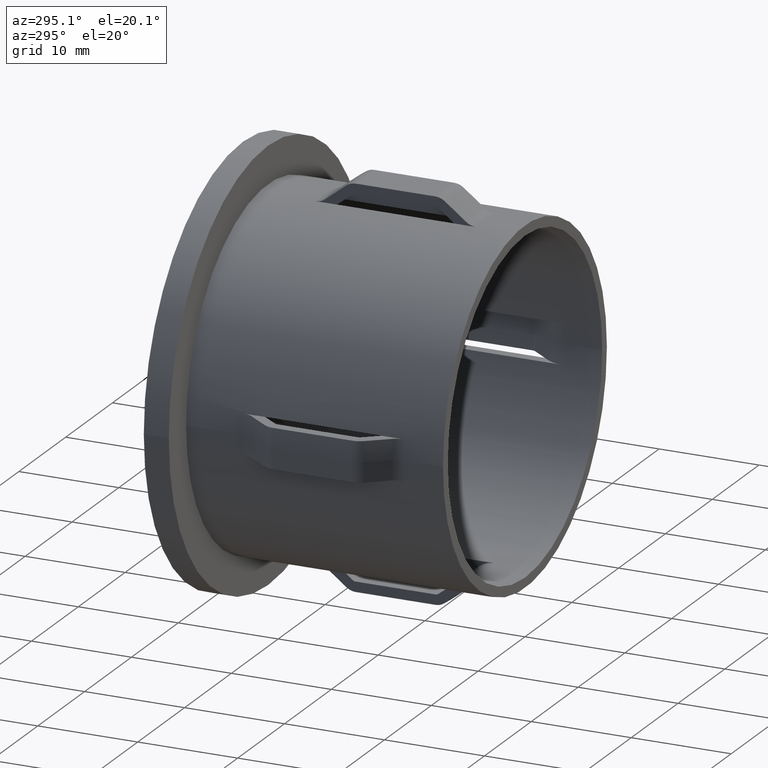
[diagram: clean part render]
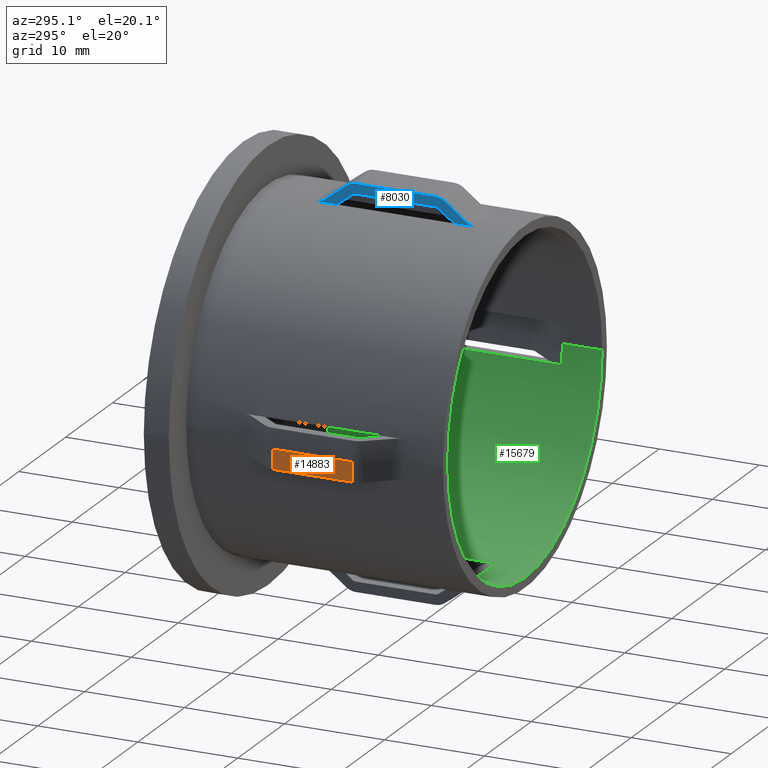
[diagram: same view with three faces highlighted in distinct colors, each labeled with its STEP entity id]
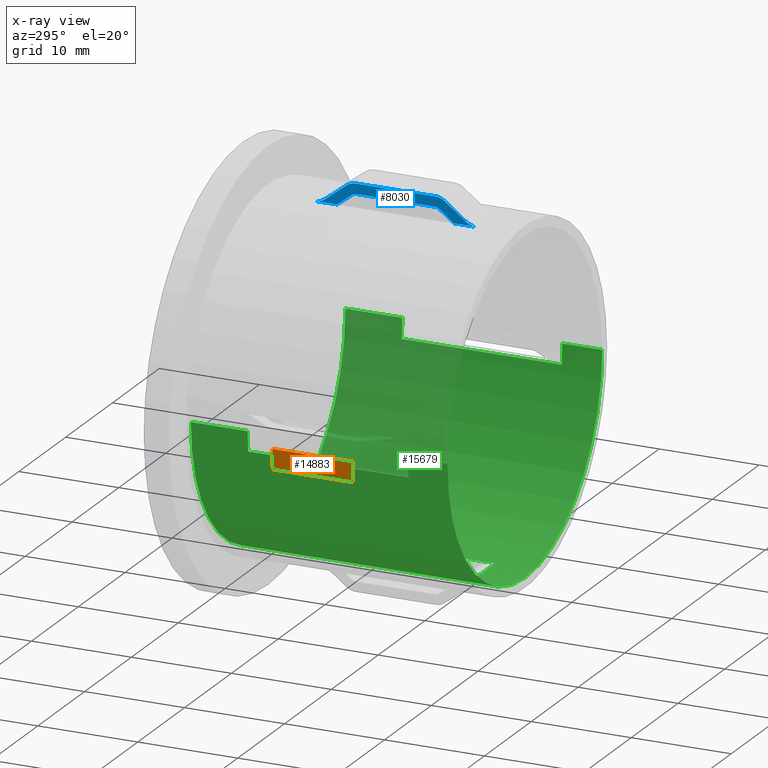
[diagram: x-ray of the same camera — body ghosted, the three highlighted faces saturated]
A machine part, auxiliary view with three faces highlighted in distinct colors.
The next image is the same camera in x-ray (body ghosted, the three faces saturated) — at least one of them is partly hidden behind the body in this view.
Their STEP definitions:

[orange] entity #14883 — the highlighted cylindrical surface (partial cylindrical patch) has radius 19.8 mm, axis along (-0, 1, -0).
#365 = DIRECTION ( 'NONE',  ( -1.714505518806297100E-016, 1.000000000000000000, -0.0000000000000000000 ) ) ;
#1263 = EDGE_CURVE ( 'NONE', #7778, #9473, #12883, .T. ) ;
#1569 = ORIENTED_EDGE ( 'NONE', *, *, #1263, .F. ) ;
#1912 = AXIS2_PLACEMENT_3D ( 'NONE', #11277, #3622, #12588 ) ;
#2244 = CARTESIAN_POINT ( 'NONE',  ( -19.69873092358997000, 20.00000000000000000, -2.000000000000000000 ) ) ;
#2315 = EDGE_CURVE ( 'NONE', #7778, #10833, #15633, .T. ) ;
#3292 = CARTESIAN_POINT ( 'NONE',  ( -19.69873092358997000, 7.999999999999992900, -2.000000000000000000 ) ) ;
#3622 = DIRECTION ( 'NONE',  ( -1.714505518806297100E-016, 1.000000000000000000, -0.0000000000000000000 ) ) ;
#3959 = ORIENTED_EDGE ( 'NONE', *, *, #7520, .T. ) ;
#4244 = CARTESIAN_POINT ( 'NONE',  ( -19.80000000000000100, 15.99999999999999300, 0.0000000000000000000 ) ) ;
#4389 = CARTESIAN_POINT ( 'NONE',  ( 3.218371788159250600E-015, 7.999999999999992900, 0.0000000000000000000 ) ) ;
#4441 = DIRECTION ( 'NONE',  ( -1.714505518806297100E-016, 1.000000000000000000, -0.0000000000000000000 ) ) ;
#5538 = VECTOR ( 'NONE', #6193, 1000.000000000000000 ) ;
#5850 = EDGE_CURVE ( 'NONE', #6281, #9473, #16589, .T. ) ;
#6193 = DIRECTION ( 'NONE',  ( -1.714505518806297100E-016, 1.000000000000000000, -0.0000000000000000000 ) ) ;
#6281 = VERTEX_POINT ( 'NONE', #13864 ) ;
#6413 = VECTOR ( 'NONE', #7444, 1000.000000000000000 ) ;
#7444 = DIRECTION ( 'NONE',  ( -0.0000000000000000000, -1.000000000000000000, -0.0000000000000000000 ) ) ;
#7488 = CARTESIAN_POINT ( 'NONE',  ( -19.80000000000000100, 28.19999999999999600, 0.0000000000000000000 ) ) ;
#7520 = EDGE_CURVE ( 'NONE', #10833, #6281, #13760, .T. ) ;
#7778 = VERTEX_POINT ( 'NONE', #11522 ) ;
#8164 = ORIENTED_EDGE ( 'NONE', *, *, #2315, .T. ) ;
#9164 = ORIENTED_EDGE ( 'NONE', *, *, #5850, .T. ) ;
#9473 = VERTEX_POINT ( 'NONE', #4244 ) ;
#9559 = AXIS2_PLACEMENT_3D ( 'NONE', #4389, #4441, #10711 ) ;
#10164 = AXIS2_PLACEMENT_3D ( 'NONE', #13298, #365, #15634 ) ;
#10426 = FACE_OUTER_BOUND ( 'NONE', #16317, .T. ) ;
#10711 = DIRECTION ( 'NONE',  ( -1.000000000000000000, -1.752245935330108400E-016, 0.0000000000000000000 ) ) ;
#10833 = VERTEX_POINT ( 'NONE', #3292 ) ;
#11277 = CARTESIAN_POINT ( 'NONE',  ( 1.846767373114211700E-015, 15.99999999999999600, 0.0000000000000000000 ) ) ;
#11522 = CARTESIAN_POINT ( 'NONE',  ( -19.69873092358997000, 15.99999999999999300, -2.000000000000000000 ) ) ;
#12588 = DIRECTION ( 'NONE',  ( -1.000000000000000000, -1.752245935330107700E-016, 0.0000000000000000000 ) ) ;
#12883 = CIRCLE ( 'NONE', #1912, 19.80000000000000400 ) ;
#13298 = CARTESIAN_POINT ( 'NONE',  ( -2.449293598294708900E-016, 28.19999999999999900, 0.0000000000000000000 ) ) ;
#13760 = CIRCLE ( 'NONE', #9559, 19.79999999999999700 ) ;
#13864 = CARTESIAN_POINT ( 'NONE',  ( -19.79999999999999400, 7.999999999999989300, 0.0000000000000000000 ) ) ;
#14883 = ADVANCED_FACE ( 'NONE', ( #10426 ), #15232, .T. ) ;
#15232 = CYLINDRICAL_SURFACE ( 'NONE', #10164, 19.80000000000000100 ) ;
#15633 = LINE ( 'NONE', #2244, #6413 ) ;
#15634 = DIRECTION ( 'NONE',  ( -1.000000000000000000, -1.752245935330108200E-016, 0.0000000000000000000 ) ) ;
#16317 = EDGE_LOOP ( 'NONE', ( #3959, #9164, #1569, #8164 ) ) ;
#16589 = LINE ( 'NONE', #7488, #5538 ) ;

[blue] entity #8030 — the highlighted planar face has unit normal (-1, 0, 0).
#97 = EDGE_CURVE ( 'NONE', #7538, #16128, #16424, .T. ) ;
#170 = CARTESIAN_POINT ( 'NONE',  ( -1.999999999999996700, 17.44161250498658300, 17.70510967552677100 ) ) ;
#207 = CARTESIAN_POINT ( 'NONE',  ( -1.999999999999996200, 7.672386854180893500, 19.67162820651757800 ) ) ;
#208 = CARTESIAN_POINT ( 'NONE',  ( -1.999999999999996700, 5.060495202478389100, 17.81191609988229600 ) ) ;
#297 = CARTESIAN_POINT ( 'NONE',  ( -1.999999999999996700, 3.999999999999993300, 17.38533865071371000 ) ) ;
#322 = CARTESIAN_POINT ( 'NONE',  ( -1.999999999999996700, 17.23606738661802900, 17.86496968364076200 ) ) ;
#488 = B_SPLINE_CURVE_WITH_KNOTS ( 'NONE', 3,
 ( #12650, #6352, #2325, #5055, #6121, #4995 ),
 .UNSPECIFIED., .F., .F.,
 ( 4, 2, 4 ),
 ( 0.008867984013301794300, 0.009358702014046670100, 0.009849420014791545800 ),
 .UNSPECIFIED. ) ;
#506 = EDGE_CURVE ( 'NONE', #12012, #4211, #2833, .T. ) ;
#530 = VERTEX_POINT ( 'NONE', #4781 ) ;
#532 = CARTESIAN_POINT ( 'NONE',  ( -1.999999999999996700, 19.83627117955012800, 17.38533865071371300 ) ) ;
#818 = CARTESIAN_POINT ( 'NONE',  ( -1.999999999999996700, 15.99999999999999600, 18.69331431287668000 ) ) ;
#845 = ORIENTED_EDGE ( 'NONE', *, *, #3728, .T. ) ;
#868 = CARTESIAN_POINT ( 'NONE',  ( -1.999999999999996200, 17.16348861717476700, 19.19262139241841300 ) ) ;
#1155 = EDGE_CURVE ( 'NONE', #6834, #6595, #15337, .T. ) ;
#1184 = CARTESIAN_POINT ( 'NONE',  ( -1.999999999999996200, 19.99999999999999300, 17.38533865071370600 ) ) ;
#1405 = ORIENTED_EDGE ( 'NONE', *, *, #1155, .T. ) ;
#1438 = CARTESIAN_POINT ( 'NONE',  ( -1.999999999999996700, 4.917305896999594400, 17.70054402987423400 ) ) ;
#1532 = CARTESIAN_POINT ( 'NONE',  ( -1.999999999999995800, 7.360362520471160700, 19.56480000623314200 ) ) ;
#1561 = EDGE_CURVE ( 'NONE', #16128, #12012, #7653, .T. ) ;
#1804 = CARTESIAN_POINT ( 'NONE',  ( -1.999999999999996200, 15.99999999999999300, 19.69873092358997400 ) ) ;
#1824 = CARTESIAN_POINT ( 'NONE',  ( -1.999999999999996200, 19.99999999999999300, 17.38533865071370600 ) ) ;
#1898 = CARTESIAN_POINT ( 'NONE',  ( -1.999999999999996200, 7.082694103002710400, 19.38391828307800700 ) ) ;
#2021 = CARTESIAN_POINT ( 'NONE',  ( -1.999999999999996200, 16.91730589699728400, 19.38391828307800700 ) ) ;
#2325 = CARTESIAN_POINT ( 'NONE',  ( -1.999999999999995800, 16.32915803494994800, 19.67134519996887200 ) ) ;
#2525 = ORIENTED_EDGE ( 'NONE', *, *, #15897, .F. ) ;
#2672 = CARTESIAN_POINT ( 'NONE',  ( -1.999999999999996200, 7.944671051340662900, 18.69331431287668000 ) ) ;
#2761 = ORIENTED_EDGE ( 'NONE', *, *, #1561, .T. ) ;
#2768 = CARTESIAN_POINT ( 'NONE',  ( -1.999999999999996700, 7.694231367667780900, 18.58832299002230900 ) ) ;
#2808 = CARTESIAN_POINT ( 'NONE',  ( -1.999999999999996200, 7.999999999999992900, 19.69873092358997400 ) ) ;
#2833 = LINE ( 'NONE', #12138, #10448 ) ;
#2880 = LINE ( 'NONE', #13930, #16092 ) ;
#2971 = ORIENTED_EDGE ( 'NONE', *, *, #97, .T. ) ;
#3010 = CARTESIAN_POINT ( 'NONE',  ( -1.999999999999996700, 16.05463920765871000, 18.69331431287668700 ) ) ;
#3054 = CARTESIAN_POINT ( 'NONE',  ( -1.999999999999996200, 16.91730589699728400, 19.38391828307800700 ) ) ;
#3060 = DIRECTION ( 'NONE',  ( -0.0000000000000000000, -1.000000000000000000, -0.0000000000000000000 ) ) ;
#3728 = EDGE_CURVE ( 'NONE', #6282, #14374, #4669, .T. ) ;
#3882 = B_SPLINE_CURVE_WITH_KNOTS ( 'NONE', 3,
 ( #9191, #6715, #1532, #207, #9135, #2808 ),
 .UNSPECIFIED., .F., .F.,
 ( 4, 2, 4 ),
 ( 0.008967400865627800700, 0.009457634693453113900, 0.009947868521278425300 ),
 .UNSPECIFIED. ) ;
#3906 = CARTESIAN_POINT ( 'NONE',  ( -1.999999999999996700, 4.965034956402244700, 17.73766896485842500 ) ) ;
#3996 = CARTESIAN_POINT ( 'NONE',  ( -1.999999999999996700, 4.917305896999594400, 17.70054402987423400 ) ) ;
#4211 = VERTEX_POINT ( 'NONE', #12829 ) ;
#4281 = CARTESIAN_POINT ( 'NONE',  ( -1.999999999999997100, 16.21332361912641000, 18.64855506590738400 ) ) ;
#4497 = CARTESIAN_POINT ( 'NONE',  ( -1.999999999999996700, 15.99999999999999600, 18.69331431287668000 ) ) ;
#4538 = CARTESIAN_POINT ( 'NONE',  ( -1.999999999999996700, 6.240436341341644600, 17.45777055170323400 ) ) ;
#4620 = AXIS2_PLACEMENT_3D ( 'NONE', #12227, #16112, #13628 ) ;
#4669 = B_SPLINE_CURVE_WITH_KNOTS ( 'NONE', 3,
 ( #2768, #13033, #5317, #13587, #5478, #4538, #11952 ),
 .UNSPECIFIED., .F., .F.,
 ( 4, 3, 4 ),
 ( 0.003338922586900217900, 0.004944656690054788000, 0.005298527996204976900 ),
 .UNSPECIFIED. ) ;
#4671 = EDGE_LOOP ( 'NONE', ( #2761, #9959, #8347, #14555, #15572, #11349, #845, #10017, #1405, #14863, #13150, #2525, #9641, #2971 ) ) ;
#4781 = CARTESIAN_POINT ( 'NONE',  ( -1.999999999999996200, 7.999999999999992900, 19.69873092358997400 ) ) ;
#4948 = DIRECTION ( 'NONE',  ( -0.0000000000000000000, -1.000000000000000000, -0.0000000000000000000 ) ) ;
#4995 = CARTESIAN_POINT ( 'NONE',  ( -1.999999999999996200, 16.91730589699728400, 19.38391828307800700 ) ) ;
#5055 = CARTESIAN_POINT ( 'NONE',  ( -1.999999999999996200, 16.64209367270386500, 19.56370999303141600 ) ) ;
#5074 = B_SPLINE_CURVE_WITH_KNOTS ( 'NONE', 3,
 ( #13313, #13426, #4281, #12196, #3010, #4497 ),
 .UNSPECIFIED., .F., .F.,
 ( 4, 2, 4 ),
 ( 0.001121410949491989400, 0.001285245636186296700, 0.001449080322880604100 ),
 .UNSPECIFIED. ) ;
#5317 = CARTESIAN_POINT ( 'NONE',  ( -1.999999999999996700, 6.849119050359676400, 17.93125917948813400 ) ) ;
#5474 = VECTOR ( 'NONE', #6842, 1000.000000000000000 ) ;
#5478 = CARTESIAN_POINT ( 'NONE',  ( -1.999999999999996700, 6.333538614768044400, 17.53019877033859300 ) ) ;
#5503 = VERTEX_POINT ( 'NONE', #16598 ) ;
#5670 = CARTESIAN_POINT ( 'NONE',  ( -1.999999999999996700, 4.917305896999594400, 17.70054402987423400 ) ) ;
#5808 = PLANE ( 'NONE',  #4620 ) ;
#5881 = LINE ( 'NONE', #14504, #5474 ) ;
#6121 = CARTESIAN_POINT ( 'NONE',  ( -1.999999999999996200, 16.78708182934077100, 19.48510390493481700 ) ) ;
#6282 = VERTEX_POINT ( 'NONE', #8706 ) ;
#6352 = CARTESIAN_POINT ( 'NONE',  ( -1.999999999999995800, 16.16359204017242500, 19.69873092358998400 ) ) ;
#6465 = CARTESIAN_POINT ( 'NONE',  ( -1.999999999999996700, 5.012764729325934500, 17.77479298253360100 ) ) ;
#6481 = EDGE_CURVE ( 'NONE', #15542, #530, #3882, .T. ) ;
#6507 = CARTESIAN_POINT ( 'NONE',  ( -1.999999999999996200, 7.082694103002710400, 19.38391828307800700 ) ) ;
#6523 = CARTESIAN_POINT ( 'NONE',  ( -1.999999999999996700, 7.737947300021954100, 18.62230641858774400 ) ) ;
#6581 = CARTESIAN_POINT ( 'NONE',  ( -1.999999999999996700, 16.30576863233242300, 18.58832299002213500 ) ) ;
#6595 = VERTEX_POINT ( 'NONE', #5670 ) ;
#6707 = CARTESIAN_POINT ( 'NONE',  ( -1.999999999999996700, 4.640460776413571700, 17.51991583062470800 ) ) ;
#6715 = CARTESIAN_POINT ( 'NONE',  ( -1.999999999999995800, 7.212180221629354000, 19.48453050991786400 ) ) ;
#6834 = VERTEX_POINT ( 'NONE', #10251 ) ;
#6842 = DIRECTION ( 'NONE',  ( 1.714505518806297100E-016, -1.000000000000000000, 0.0000000000000000000 ) ) ;
#7015 = EDGE_CURVE ( 'NONE', #5503, #8077, #5074, .T. ) ;
#7252 = VERTEX_POINT ( 'NONE', #1804 ) ;
#7285 = CARTESIAN_POINT ( 'NONE',  ( -1.999999999999996200, 16.99936842538838600, 19.32015473985728300 ) ) ;
#7430 = CARTESIAN_POINT ( 'NONE',  ( -1.999999999999993100, 7.999999999999996400, 18.69331431287667700 ) ) ;
#7538 = VERTEX_POINT ( 'NONE', #3054 ) ;
#7653 = B_SPLINE_CURVE_WITH_KNOTS ( 'NONE', 3,
 ( #9478, #15848, #14671, #8185, #532, #1824 ),
 .UNSPECIFIED., .F., .F.,
 ( 4, 2, 4 ),
 ( 0.009203136996851376400, 0.009694261902653640200, 0.01018538680845590400 ),
 .UNSPECIFIED. ) ;
#8030 = ADVANCED_FACE ( 'NONE', ( #14540 ), #5808, .T. ) ;
#8038 = CARTESIAN_POINT ( 'NONE',  ( -1.999999999999996700, 17.85266306708251700, 17.38533865071371000 ) ) ;
#8077 = VERTEX_POINT ( 'NONE', #818 ) ;
#8185 = CARTESIAN_POINT ( 'NONE',  ( -1.999999999999996700, 19.67034361049968500, 17.41307147728944200 ) ) ;
#8341 = CARTESIAN_POINT ( 'NONE',  ( -1.999999999999996200, 17.08142934826650400, 19.25638913031339400 ) ) ;
#8347 = ORIENTED_EDGE ( 'NONE', *, *, #8773, .T. ) ;
#8603 = VECTOR ( 'NONE', #11307, 1000.000000000000000 ) ;
#8692 = CARTESIAN_POINT ( 'NONE',  ( -1.999999999999996200, 20.00000000000000000, 19.69873092358997400 ) ) ;
#8706 = CARTESIAN_POINT ( 'NONE',  ( -1.999999999999996700, 7.694231367667780900, 18.58832299002230900 ) ) ;
#8773 = EDGE_CURVE ( 'NONE', #4211, #5503, #12496, .T. ) ;
#9006 = CARTESIAN_POINT ( 'NONE',  ( -1.999999999999993100, 7.999999999999996400, 18.69331431287667700 ) ) ;
#9081 = CARTESIAN_POINT ( 'NONE',  ( -1.999999999999996700, 4.787664262813032100, 17.59970531023638800 ) ) ;
#9105 = CARTESIAN_POINT ( 'NONE',  ( -1.999999999999996700, 16.92599595467671500, 18.10612365518475600 ) ) ;
#9135 = CARTESIAN_POINT ( 'NONE',  ( -1.999999999999996200, 7.834924305480600800, 19.69873092358998100 ) ) ;
#9141 = CARTESIAN_POINT ( 'NONE',  ( -1.999999999999996200, 6.408509889070942700, 18.86006927298055700 ) ) ;
#9154 = EDGE_CURVE ( 'NONE', #8077, #12783, #5881, .T. ) ;
#9191 = CARTESIAN_POINT ( 'NONE',  ( -1.999999999999996200, 7.082694103002710400, 19.38391828307800700 ) ) ;
#9478 = CARTESIAN_POINT ( 'NONE',  ( -1.999999999999996700, 19.08269410300271200, 17.70054402987661700 ) ) ;
#9641 = ORIENTED_EDGE ( 'NONE', *, *, #14814, .T. ) ;
#9814 = EDGE_CURVE ( 'NONE', #14374, #6834, #2880, .T. ) ;
#9959 = ORIENTED_EDGE ( 'NONE', *, *, #506, .T. ) ;
#10017 = ORIENTED_EDGE ( 'NONE', *, *, #9814, .T. ) ;
#10251 = CARTESIAN_POINT ( 'NONE',  ( -1.999999999999996700, 3.999999999999993300, 17.38533865071371000 ) ) ;
#10434 = B_SPLINE_CURVE_WITH_KNOTS ( 'NONE', 3,
 ( #1438, #3906, #6465, #208, #12971, #9141, #6507 ),
 .UNSPECIFIED., .F., .F.,
 ( 4, 3, 4 ),
 ( 0.005285805697475323300, 0.005467208288220887600, 0.008028551137046369100 ),
 .UNSPECIFIED. ) ;
#10448 = VECTOR ( 'NONE', #3060, 1000.000000000000000 ) ;
#11073 = CARTESIAN_POINT ( 'NONE',  ( -1.999999999999996200, 17.80333279971733200, 18.69540253257680700 ) ) ;
#11307 = DIRECTION ( 'NONE',  ( -0.0000000000000000000, -1.000000000000000000, -0.0000000000000000000 ) ) ;
#11349 = ORIENTED_EDGE ( 'NONE', *, *, #12039, .T. ) ;
#11416 = CARTESIAN_POINT ( 'NONE',  ( -1.999999999999996700, 7.694231367667780900, 18.58832299002230900 ) ) ;
#11639 = CARTESIAN_POINT ( 'NONE',  ( -1.999999999999996700, 7.785984405077051000, 18.64831814402369800 ) ) ;
#11665 = CARTESIAN_POINT ( 'NONE',  ( -1.999999999999996200, 4.165290279245916800, 17.38533865071371300 ) ) ;
#11801 = CARTESIAN_POINT ( 'NONE',  ( -1.999999999999996700, 16.61589527519828400, 18.34724002446394700 ) ) ;
#11952 = CARTESIAN_POINT ( 'NONE',  ( -1.999999999999996700, 6.147336932917479400, 17.38533865071371000 ) ) ;
#12012 = VERTEX_POINT ( 'NONE', #1184 ) ;
#12039 = EDGE_CURVE ( 'NONE', #12783, #6282, #14335, .T. ) ;
#12138 = CARTESIAN_POINT ( 'NONE',  ( -1.999999999999996700, 20.00000000000000000, 17.38533865071371000 ) ) ;
#12196 = CARTESIAN_POINT ( 'NONE',  ( -1.999999999999996700, 16.10995719057469000, 18.68406974042051500 ) ) ;
#12227 = CARTESIAN_POINT ( 'NONE',  ( -2.000000000000000000, 20.00000000000000000, 3.920560142907556500E-016 ) ) ;
#12387 = CARTESIAN_POINT ( 'NONE',  ( -1.999999999999996700, 19.08269410300271200, 17.70054402987661700 ) ) ;
#12496 = B_SPLINE_CURVE_WITH_KNOTS ( 'NONE', 3,
 ( #8038, #14260, #170, #322, #9105, #11801, #6581 ),
 .UNSPECIFIED., .F., .F.,
 ( 4, 3, 4 ),
 ( 0.004163481079764765200, 0.004944657109267978200, 0.006123086308674613500 ),
 .UNSPECIFIED. ) ;
#12650 = CARTESIAN_POINT ( 'NONE',  ( -1.999999999999996200, 15.99999999999999300, 19.69873092358997400 ) ) ;
#12783 = VERTEX_POINT ( 'NONE', #7430 ) ;
#12829 = CARTESIAN_POINT ( 'NONE',  ( -1.999999999999996700, 17.85266306708251700, 17.38533865071371000 ) ) ;
#12971 = CARTESIAN_POINT ( 'NONE',  ( -1.999999999999996700, 5.734433190432793200, 18.33608184474439500 ) ) ;
#13033 = CARTESIAN_POINT ( 'NONE',  ( -1.999999999999996700, 7.271651142806102400, 18.25982204971462200 ) ) ;
#13117 = CARTESIAN_POINT ( 'NONE',  ( -1.999999999999997100, 4.329700382547955900, 17.41301937505974700 ) ) ;
#13150 = ORIENTED_EDGE ( 'NONE', *, *, #6481, .T. ) ;
#13313 = CARTESIAN_POINT ( 'NONE',  ( -1.999999999999996700, 16.30576863233242300, 18.58832299002213500 ) ) ;
#13368 = EDGE_CURVE ( 'NONE', #6595, #15542, #10434, .T. ) ;
#13426 = CARTESIAN_POINT ( 'NONE',  ( -1.999999999999996200, 16.26260801074618500, 18.62187473698330100 ) ) ;
#13587 = CARTESIAN_POINT ( 'NONE',  ( -1.999999999999996700, 6.426643648481549700, 17.60262344035573900 ) ) ;
#13628 = DIRECTION ( 'NONE',  ( 1.960280071453778300E-016, 0.0000000000000000000, 1.000000000000000000 ) ) ;
#13930 = CARTESIAN_POINT ( 'NONE',  ( -1.999999999999996700, 20.00000000000000000, 17.38533865071371000 ) ) ;
#14052 = CARTESIAN_POINT ( 'NONE',  ( -1.999999999999997100, 7.890748094934824800, 18.68431123515498600 ) ) ;
#14260 = CARTESIAN_POINT ( 'NONE',  ( -1.999999999999996700, 17.64714476301812600, 17.54523313021141800 ) ) ;
#14335 = B_SPLINE_CURVE_WITH_KNOTS ( 'NONE', 3,
 ( #9006, #2672, #14052, #11639, #6523, #11416 ),
 .UNSPECIFIED., .F., .F.,
 ( 4, 2, 4 ),
 ( 0.001687266883629301000, 0.001851138705140563800, 0.002015010526651826600 ),
 .UNSPECIFIED. ) ;
#14374 = VERTEX_POINT ( 'NONE', #14895 ) ;
#14504 = CARTESIAN_POINT ( 'NONE',  ( -1.999999999999996700, 28.19999999999999900, 18.69331431287667700 ) ) ;
#14540 = FACE_OUTER_BOUND ( 'NONE', #4671, .T. ) ;
#14555 = ORIENTED_EDGE ( 'NONE', *, *, #7015, .T. ) ;
#14671 = CARTESIAN_POINT ( 'NONE',  ( -1.999999999999997100, 19.36058996838875100, 17.51948739383115200 ) ) ;
#14709 = CARTESIAN_POINT ( 'NONE',  ( -1.999999999999996700, 18.44307714435867500, 18.19805515410471100 ) ) ;
#14814 = EDGE_CURVE ( 'NONE', #7252, #7538, #488, .T. ) ;
#14863 = ORIENTED_EDGE ( 'NONE', *, *, #13368, .T. ) ;
#14895 = CARTESIAN_POINT ( 'NONE',  ( -1.999999999999996700, 6.147336932917479400, 17.38533865071371000 ) ) ;
#14963 = CARTESIAN_POINT ( 'NONE',  ( -1.999999999999996700, 19.08269410300271200, 17.70054402987661700 ) ) ;
#15337 = B_SPLINE_CURVE_WITH_KNOTS ( 'NONE', 3,
 ( #297, #11665, #13117, #6707, #9081, #3996 ),
 .UNSPECIFIED., .F., .F.,
 ( 4, 2, 4 ),
 ( 0.009283145730331338400, 0.009774531974863769100, 0.01026591821939620100 ),
 .UNSPECIFIED. ) ;
#15413 = LINE ( 'NONE', #8692, #8603 ) ;
#15542 = VERTEX_POINT ( 'NONE', #1898 ) ;
#15572 = ORIENTED_EDGE ( 'NONE', *, *, #9154, .T. ) ;
#15848 = CARTESIAN_POINT ( 'NONE',  ( -1.999999999999996200, 19.21306737486565900, 17.59913622294271100 ) ) ;
#15897 = EDGE_CURVE ( 'NONE', #7252, #530, #15413, .T. ) ;
#16092 = VECTOR ( 'NONE', #4948, 1000.000000000000000 ) ;
#16112 = DIRECTION ( 'NONE',  ( -1.000000000000000000, 0.0000000000000000000, 1.960280071453778300E-016 ) ) ;
#16128 = VERTEX_POINT ( 'NONE', #14963 ) ;
#16424 = B_SPLINE_CURVE_WITH_KNOTS ( 'NONE', 3,
 ( #2021, #7285, #8341, #868, #11073, #14709, #12387 ),
 .UNSPECIFIED., .F., .F.,
 ( 4, 3, 4 ),
 ( 0.005155437541984613100, 0.005467207359911145100, 0.007898183461944759800 ),
 .UNSPECIFIED. ) ;
#16598 = CARTESIAN_POINT ( 'NONE',  ( -1.999999999999996700, 16.30576863233242300, 18.58832299002213500 ) ) ;

[green] entity #15679 — the highlighted cylindrical surface (partial cylindrical patch) has radius 16.5 mm, axis along (-0, 1, -0).
#6 = ORIENTED_EDGE ( 'NONE', *, *, #6280, .F. ) ;
#28 = VECTOR ( 'NONE', #15179, 1000.000000000000000 ) ;
#39 = EDGE_CURVE ( 'NONE', #4932, #15877, #8059, .T. ) ;
#153 = VERTEX_POINT ( 'NONE', #16060 ) ;
#656 = CARTESIAN_POINT ( 'NONE',  ( 3.904173995681768100E-015, 3.999999999999996400, 0.0000000000000000000 ) ) ;
#763 = EDGE_CURVE ( 'NONE', #8622, #2507, #14070, .T. ) ;
#775 = VERTEX_POINT ( 'NONE', #1351 ) ;
#806 = CARTESIAN_POINT ( 'NONE',  ( -1.999999999999996700, 20.00000000000000000, -16.37833935415919800 ) ) ;
#827 = DIRECTION ( 'NONE',  ( 0.0000000000000000000, -1.000000000000000000, 0.0000000000000000000 ) ) ;
#878 = CARTESIAN_POINT ( 'NONE',  ( 16.37833935415920200, 20.00000000000000400, -2.000000000000000000 ) ) ;
#1054 = EDGE_CURVE ( 'NONE', #7139, #3368, #1628, .T. ) ;
#1351 = CARTESIAN_POINT ( 'NONE',  ( 16.50000000000000400, 19.99999999999999600, 2.020667218593133500E-015 ) ) ;
#1449 = ORIENTED_EDGE ( 'NONE', *, *, #6592, .F. ) ;
#1609 = EDGE_LOOP ( 'NONE', ( #4319, #4336, #1449, #1729 ) ) ;
#1628 = CIRCLE ( 'NONE', #4167, 16.50000000000000000 ) ;
#1729 = ORIENTED_EDGE ( 'NONE', *, *, #11779, .F. ) ;
#1943 = VERTEX_POINT ( 'NONE', #878 ) ;
#2039 = CARTESIAN_POINT ( 'NONE',  ( 16.37833935415920200, 47.45815458154230300, -2.000000000000000000 ) ) ;
#2042 = VECTOR ( 'NONE', #14171, 1000.000000000000000 ) ;
#2209 = CARTESIAN_POINT ( 'NONE',  ( 1.160965165591693700E-015, 19.99999999999999300, 0.0000000000000000000 ) ) ;
#2221 = VECTOR ( 'NONE', #6333, 1000.000000000000000 ) ;
#2407 = CARTESIAN_POINT ( 'NONE',  ( 16.50000000000000000, 25.69999999999999900, 2.020667218593133100E-015 ) ) ;
#2433 = DIRECTION ( 'NONE',  ( -1.000000000000000000, -2.102695122396129400E-016, 0.0000000000000000000 ) ) ;
#2507 = VERTEX_POINT ( 'NONE', #7935 ) ;
#2613 = LINE ( 'NONE', #5931, #28 ) ;
#2698 = VERTEX_POINT ( 'NONE', #6243 ) ;
#3129 = DIRECTION ( 'NONE',  ( 0.0000000000000000000, -1.000000000000000000, 0.0000000000000000000 ) ) ;
#3185 = EDGE_CURVE ( 'NONE', #2698, #153, #14055, .T. ) ;
#3368 = VERTEX_POINT ( 'NONE', #6705 ) ;
#3384 = LINE ( 'NONE', #11079, #16596 ) ;
#3436 = DIRECTION ( 'NONE',  ( -1.714505518806297100E-016, 1.000000000000000000, -0.0000000000000000000 ) ) ;
#3483 = CARTESIAN_POINT ( 'NONE',  ( -1.999999999999993600, 3.999999999999996400, -16.37833935415920200 ) ) ;
#3555 = DIRECTION ( 'NONE',  ( -1.714505518806297100E-016, 1.000000000000000000, -0.0000000000000000000 ) ) ;
#4039 = AXIS2_PLACEMENT_3D ( 'NONE', #12372, #12209, #14875 ) ;
#4136 = CARTESIAN_POINT ( 'NONE',  ( -16.37833935415919800, 3.999999999999994200, -1.999999999999999600 ) ) ;
#4167 = AXIS2_PLACEMENT_3D ( 'NONE', #9767, #12350, #4653 ) ;
#4319 = ORIENTED_EDGE ( 'NONE', *, *, #14454, .T. ) ;
#4336 = ORIENTED_EDGE ( 'NONE', *, *, #39, .T. ) ;
#4653 = DIRECTION ( 'NONE',  ( -1.000000000000000000, -1.577021341797097300E-016, 0.0000000000000000000 ) ) ;
#4741 = AXIS2_PLACEMENT_3D ( 'NONE', #656, #12176, #5757 ) ;
#4909 = VECTOR ( 'NONE', #3436, 1000.000000000000000 ) ;
#4932 = VERTEX_POINT ( 'NONE', #16558 ) ;
#5254 = AXIS2_PLACEMENT_3D ( 'NONE', #2209, #3555, #15025 ) ;
#5450 = ORIENTED_EDGE ( 'NONE', *, *, #16224, .F. ) ;
#5753 = VECTOR ( 'NONE', #827, 1000.000000000000000 ) ;
#5757 = DIRECTION ( 'NONE',  ( -1.000000000000000000, -1.577021341797097300E-016, 0.0000000000000000000 ) ) ;
#5931 = CARTESIAN_POINT ( 'NONE',  ( 2.000000000000004400, 47.45815458154230300, -16.37833935415919800 ) ) ;
#6019 = ORIENTED_EDGE ( 'NONE', *, *, #3185, .F. ) ;
#6127 = LINE ( 'NONE', #13738, #4909 ) ;
#6243 = CARTESIAN_POINT ( 'NONE',  ( -16.50000000000000400, 19.99999999999998900, 0.0000000000000000000 ) ) ;
#6280 = EDGE_CURVE ( 'NONE', #775, #1943, #10556, .T. ) ;
#6333 = DIRECTION ( 'NONE',  ( -1.714505518806297100E-016, 1.000000000000000000, -0.0000000000000000000 ) ) ;
#6344 = CARTESIAN_POINT ( 'NONE',  ( 1.160965165591693700E-015, 19.99999999999999300, 0.0000000000000000000 ) ) ;
#6592 = EDGE_CURVE ( 'NONE', #10549, #15877, #7573, .T. ) ;
#6705 = CARTESIAN_POINT ( 'NONE',  ( 16.37833935415920500, 3.999999999999999100, -1.999999999999999600 ) ) ;
#6731 = AXIS2_PLACEMENT_3D ( 'NONE', #8945, #15528, #10237 ) ;
#6998 = DIRECTION ( 'NONE',  ( -1.714505518806297100E-016, 1.000000000000000000, -0.0000000000000000000 ) ) ;
#7139 = VERTEX_POINT ( 'NONE', #13928 ) ;
#7149 = VERTEX_POINT ( 'NONE', #13767 ) ;
#7229 = LINE ( 'NONE', #12735, #2042 ) ;
#7573 = LINE ( 'NONE', #13176, #13777 ) ;
#7935 = CARTESIAN_POINT ( 'NONE',  ( -16.49999999999999300, -6.298381057984003800E-015, 0.0000000000000000000 ) ) ;
#8059 = CIRCLE ( 'NONE', #14046, 16.50000000000000000 ) ;
#8091 = EDGE_CURVE ( 'NONE', #775, #10620, #6127, .T. ) ;
#8334 = AXIS2_PLACEMENT_3D ( 'NONE', #6344, #10316, #2433 ) ;
#8620 = FACE_OUTER_BOUND ( 'NONE', #12584, .T. ) ;
#8622 = VERTEX_POINT ( 'NONE', #15218 ) ;
#8877 = CARTESIAN_POINT ( 'NONE',  ( 2.000000000000006700, 19.99999999999999300, -16.37833935415920200 ) ) ;
#8945 = CARTESIAN_POINT ( 'NONE',  ( 4.589976203204287100E-015, -3.469446951953614200E-015, 0.0000000000000000000 ) ) ;
#9052 = CIRCLE ( 'NONE', #4039, 16.50000000000000400 ) ;
#9512 = EDGE_CURVE ( 'NONE', #10620, #153, #12312, .T. ) ;
#9675 = DIRECTION ( 'NONE',  ( -1.000000000000000000, -2.102695122396129900E-016, 0.0000000000000000000 ) ) ;
#9688 = CARTESIAN_POINT ( 'NONE',  ( 3.904173995681768100E-015, 3.999999999999996400, 0.0000000000000000000 ) ) ;
#9747 = DIRECTION ( 'NONE',  ( -1.714505518806297100E-016, 1.000000000000000000, -0.0000000000000000000 ) ) ;
#9756 = ORIENTED_EDGE ( 'NONE', *, *, #16382, .T. ) ;
#9767 = CARTESIAN_POINT ( 'NONE',  ( 3.904173995681768100E-015, 3.999999999999996400, 0.0000000000000000000 ) ) ;
#9900 = ORIENTED_EDGE ( 'NONE', *, *, #12509, .F. ) ;
#10099 = EDGE_CURVE ( 'NONE', #16035, #13277, #14248, .T. ) ;
#10237 = DIRECTION ( 'NONE',  ( -1.000000000000000000, -1.714505518806297100E-016, 0.0000000000000000000 ) ) ;
#10316 = DIRECTION ( 'NONE',  ( -1.714505518806297100E-016, 1.000000000000000000, -0.0000000000000000000 ) ) ;
#10395 = ORIENTED_EDGE ( 'NONE', *, *, #763, .F. ) ;
#10410 = VECTOR ( 'NONE', #14082, 1000.000000000000000 ) ;
#10549 = VERTEX_POINT ( 'NONE', #806 ) ;
#10556 = CIRCLE ( 'NONE', #5254, 16.50000000000000400 ) ;
#10620 = VERTEX_POINT ( 'NONE', #2407 ) ;
#10775 = ORIENTED_EDGE ( 'NONE', *, *, #1054, .T. ) ;
#10796 = FACE_BOUND ( 'NONE', #1609, .T. ) ;
#10934 = ORIENTED_EDGE ( 'NONE', *, *, #10099, .T. ) ;
#10961 = ORIENTED_EDGE ( 'NONE', *, *, #15185, .T. ) ;
#11079 = CARTESIAN_POINT ( 'NONE',  ( -16.37833935415919500, 47.45815458154230300, -2.000000000000000000 ) ) ;
#11420 = LINE ( 'NONE', #16577, #10410 ) ;
#11779 = EDGE_CURVE ( 'NONE', #13306, #10549, #9052, .T. ) ;
#11953 = AXIS2_PLACEMENT_3D ( 'NONE', #13272, #14533, #9675 ) ;
#12105 = CARTESIAN_POINT ( 'NONE',  ( -2.449293598294708900E-016, 28.19999999999999900, 0.0000000000000000000 ) ) ;
#12157 = DIRECTION ( 'NONE',  ( -1.000000000000000000, -1.577021341797097300E-016, 0.0000000000000000000 ) ) ;
#12176 = DIRECTION ( 'NONE',  ( -1.714505518806297100E-016, 1.000000000000000000, -0.0000000000000000000 ) ) ;
#12209 = DIRECTION ( 'NONE',  ( -1.714505518806297100E-016, 1.000000000000000000, -0.0000000000000000000 ) ) ;
#12312 = CIRCLE ( 'NONE', #11953, 16.50000000000000000 ) ;
#12350 = DIRECTION ( 'NONE',  ( -1.714505518806297100E-016, 1.000000000000000000, -0.0000000000000000000 ) ) ;
#12372 = CARTESIAN_POINT ( 'NONE',  ( 1.160965165591693700E-015, 19.99999999999999300, 0.0000000000000000000 ) ) ;
#12422 = CIRCLE ( 'NONE', #8334, 16.50000000000000400 ) ;
#12509 = EDGE_CURVE ( 'NONE', #2507, #13277, #7229, .T. ) ;
#12584 = EDGE_LOOP ( 'NONE', ( #10395, #10961, #10775, #13882, #6, #16126, #15610, #6019, #5450, #9756, #10934, #9900 ) ) ;
#12735 = CARTESIAN_POINT ( 'NONE',  ( -16.50000000000000000, 28.19999999999999600, 0.0000000000000000000 ) ) ;
#13176 = CARTESIAN_POINT ( 'NONE',  ( -1.999999999999996700, 47.45815458154230300, -16.37833935415919800 ) ) ;
#13272 = CARTESIAN_POINT ( 'NONE',  ( 1.836970198721037300E-016, 25.69999999999999600, 0.0000000000000000000 ) ) ;
#13277 = VERTEX_POINT ( 'NONE', #15137 ) ;
#13306 = VERTEX_POINT ( 'NONE', #8877 ) ;
#13571 = DIRECTION ( 'NONE',  ( 0.0000000000000000000, -1.000000000000000000, 0.0000000000000000000 ) ) ;
#13738 = CARTESIAN_POINT ( 'NONE',  ( 16.50000000000000000, 28.20000000000000300, 2.020667218593133100E-015 ) ) ;
#13767 = CARTESIAN_POINT ( 'NONE',  ( -16.37833935415920500, 19.99999999999998900, -2.000000000000000400 ) ) ;
#13777 = VECTOR ( 'NONE', #3129, 1000.000000000000000 ) ;
#13882 = ORIENTED_EDGE ( 'NONE', *, *, #16121, .F. ) ;
#13928 = CARTESIAN_POINT ( 'NONE',  ( 16.50000000000000400, 3.999999999999999100, 2.020667218593133500E-015 ) ) ;
#14046 = AXIS2_PLACEMENT_3D ( 'NONE', #9688, #9747, #12157 ) ;
#14055 = LINE ( 'NONE', #15236, #2221 ) ;
#14070 = CIRCLE ( 'NONE', #6731, 16.49999999999999600 ) ;
#14082 = DIRECTION ( 'NONE',  ( -1.714505518806297100E-016, 1.000000000000000000, -0.0000000000000000000 ) ) ;
#14139 = AXIS2_PLACEMENT_3D ( 'NONE', #12105, #6998, #16001 ) ;
#14171 = DIRECTION ( 'NONE',  ( -1.714505518806297100E-016, 1.000000000000000000, -0.0000000000000000000 ) ) ;
#14248 = CIRCLE ( 'NONE', #4741, 16.50000000000000000 ) ;
#14454 = EDGE_CURVE ( 'NONE', #13306, #4932, #2613, .T. ) ;
#14533 = DIRECTION ( 'NONE',  ( -1.714505518806297100E-016, 1.000000000000000000, -0.0000000000000000000 ) ) ;
#14875 = DIRECTION ( 'NONE',  ( -1.000000000000000000, -2.102695122396129400E-016, 0.0000000000000000000 ) ) ;
#15025 = DIRECTION ( 'NONE',  ( -1.000000000000000000, -2.102695122396129400E-016, 0.0000000000000000000 ) ) ;
#15137 = CARTESIAN_POINT ( 'NONE',  ( -16.49999999999999600, 3.999999999999994200, 0.0000000000000000000 ) ) ;
#15179 = DIRECTION ( 'NONE',  ( 0.0000000000000000000, -1.000000000000000000, 0.0000000000000000000 ) ) ;
#15185 = EDGE_CURVE ( 'NONE', #8622, #7139, #11420, .T. ) ;
#15218 = CARTESIAN_POINT ( 'NONE',  ( 16.50000000000000000, -6.405128459232243400E-016, 2.020667218593133100E-015 ) ) ;
#15236 = CARTESIAN_POINT ( 'NONE',  ( -16.50000000000000000, 28.19999999999999600, 0.0000000000000000000 ) ) ;
#15528 = DIRECTION ( 'NONE',  ( -1.714505518806297100E-016, 1.000000000000000000, -0.0000000000000000000 ) ) ;
#15610 = ORIENTED_EDGE ( 'NONE', *, *, #9512, .T. ) ;
#15679 = ADVANCED_FACE ( 'NONE', ( #10796, #8620 ), #15998, .F. ) ;
#15792 = LINE ( 'NONE', #2039, #5753 ) ;
#15877 = VERTEX_POINT ( 'NONE', #3483 ) ;
#15998 = CYLINDRICAL_SURFACE ( 'NONE', #14139, 16.50000000000000000 ) ;
#16001 = DIRECTION ( 'NONE',  ( -1.000000000000000000, -2.102695122396129900E-016, 0.0000000000000000000 ) ) ;
#16035 = VERTEX_POINT ( 'NONE', #4136 ) ;
#16060 = CARTESIAN_POINT ( 'NONE',  ( -16.50000000000000000, 25.69999999999999200, 0.0000000000000000000 ) ) ;
#16121 = EDGE_CURVE ( 'NONE', #1943, #3368, #15792, .T. ) ;
#16126 = ORIENTED_EDGE ( 'NONE', *, *, #8091, .T. ) ;
#16224 = EDGE_CURVE ( 'NONE', #7149, #2698, #12422, .T. ) ;
#16382 = EDGE_CURVE ( 'NONE', #7149, #16035, #3384, .T. ) ;
#16558 = CARTESIAN_POINT ( 'NONE',  ( 2.000000000000006700, 3.999999999999996400, -16.37833935415920200 ) ) ;
#16577 = CARTESIAN_POINT ( 'NONE',  ( 16.50000000000000000, 28.20000000000000300, 2.020667218593133100E-015 ) ) ;
#16596 = VECTOR ( 'NONE', #13571, 1000.000000000000000 ) ;